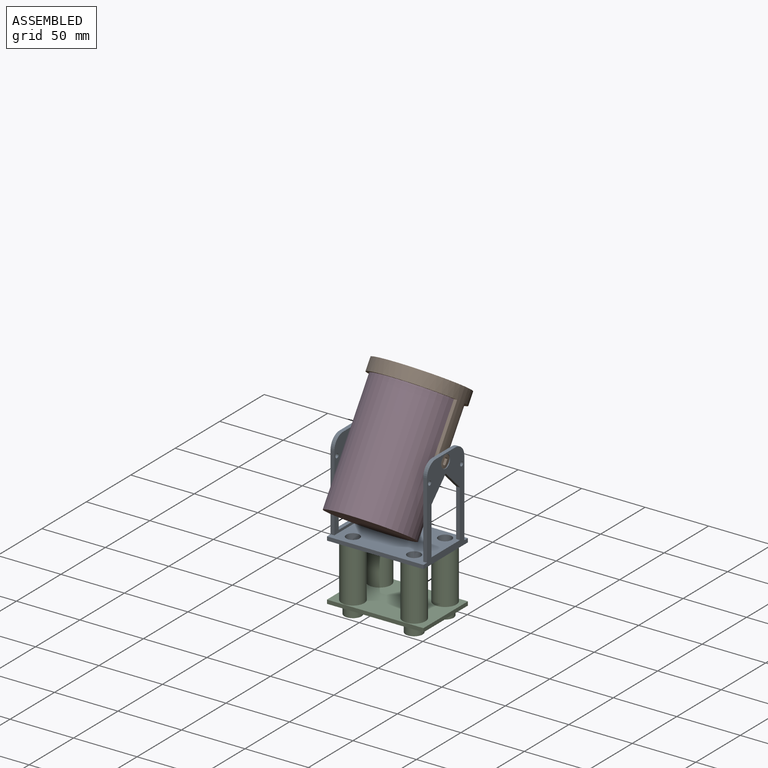
[diagram: assembled view]
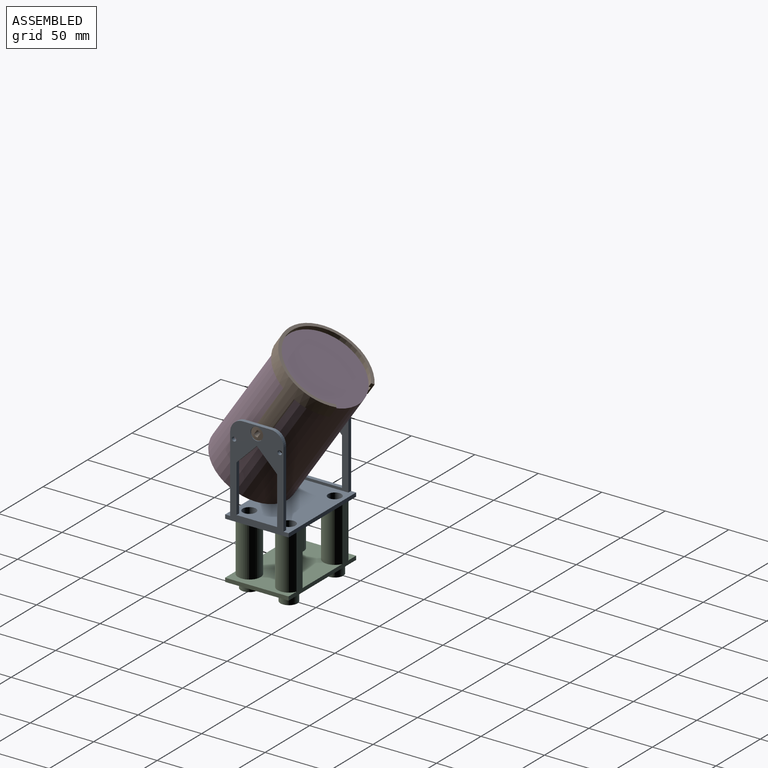
[diagram: assembled view, second angle]
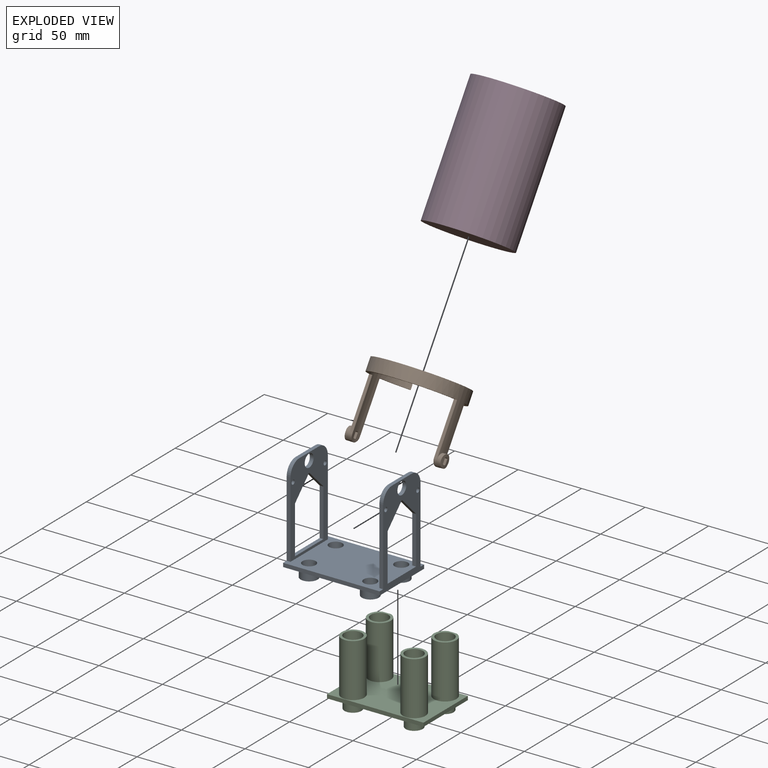
[diagram: exploded view]
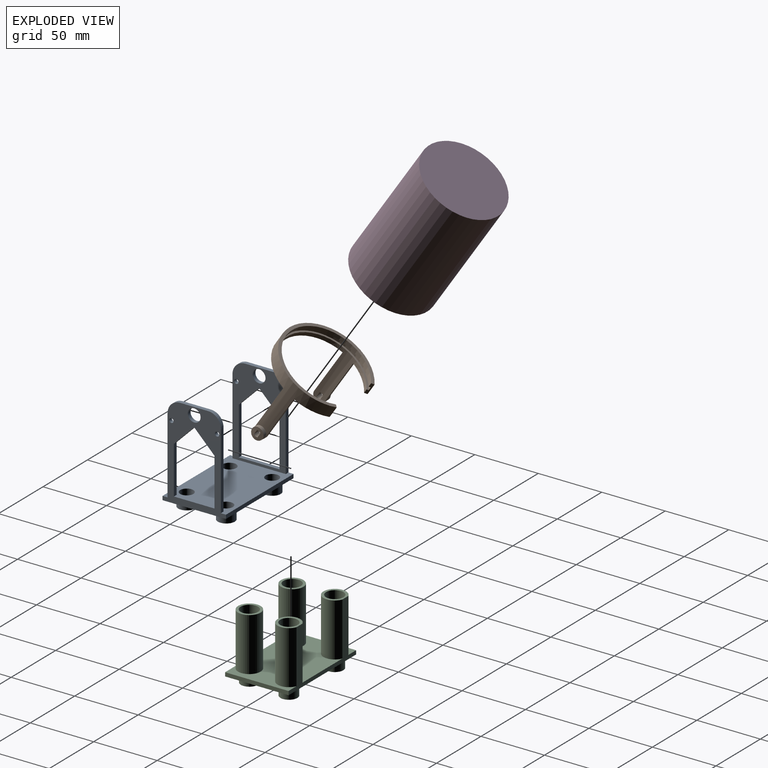
[diagram: exploded view, second angle]
ASSEMBLY  parts=4 mates=3
PART A: 46 faces, bbox 76x50x80 mm
  f0: plane 73x50mm, normal (1,0,0), area 1494.4mm2, adj f4,f5,f6,f11,f23,f24,f25,f26
  f1: plane 73x50mm, normal (-1,0,0), area 1494.4mm2, adj f4,f5,f6,f11,f20,f21,f22,f34
  f2: plane 70x42mm, normal (1,0,0), area 1344.4mm2, adj f4,f20,f21,f22,f34,f35,f36,f37
  f3: plane 70x42mm, normal (-1,0,0), area 1344.4mm2, adj f4,f23,f24,f25,f26,f27,f28,f29
  f4: plane 76x50mm, normal (0,0,1), area 3208.2mm2, adj f0,f1,f2,f3,f5,f6,f7,f8
  f5: plane 76x3mm, normal (0,-1,0), area 228mm2, adj f0,f1,f4,f11
  f6: plane 76x3mm, normal (0,1,0), area 228mm2, adj f0,f1,f4,f11
  f7: cylinder r=5.2mm len=10.4mm, axis (0,0,-1), area 326.7mm2, adj f4,f17
  f8: cylinder r=5.2mm len=10.4mm, axis (0,0,-1), area 326.7mm2, adj f4,f15
  f9: cylinder r=5.2mm len=10.4mm, axis (0,0,-1), area 326.7mm2, adj f4,f13
  f10: cylinder r=5.2mm len=10.4mm, axis (0,0,-1), area 326.7mm2, adj f4,f19
  f11: plane 76x50mm, normal (0,0,-1), area 3235.9mm2, adj f0,f1,f5,f6,f12,f14,f16,f18
  f12: cylinder r=6.7mm len=13.4mm, axis (0,0,1), area 294.7mm2, adj f11,f13
  f13: plane 13.4x13.4mm, normal (0,0,-1), area 56.1mm2, adj f9,f12
  f14: cylinder r=6.7mm len=13.4mm, axis (0,0,1), area 294.7mm2, adj f11,f15
  f15: plane 13.4x13.4mm, normal (0,0,-1), area 56.1mm2, adj f8,f14
  f16: cylinder r=6.7mm len=13.4mm, axis (0,0,1), area 294.7mm2, adj f11,f17
  f17: plane 13.4x13.4mm, normal (0,0,-1), area 56.1mm2, adj f7,f16
  f18: cylinder r=6.7mm len=13.4mm, axis (0,0,1), area 294.7mm2, adj f11,f19
  f19: plane 13.4x13.4mm, normal (0,0,-1), area 56.1mm2, adj f10,f18
  f20: plane 60x3mm, normal (0,1,0), area 180mm2, adj f1,f2,f4,f45
  f21: plane 60x3mm, normal (0,-1,0), area 180mm2, adj f1,f2,f4,f44
  f22: plane 22x3mm, normal (0,0,1), area 66mm2, adj f1,f2,f44,f45
  f23: plane 60x3mm, normal (0,1,0), area 180mm2, adj f0,f3,f4,f42
  f24: plane 60x3mm, normal (0,-1,0), area 180mm2, adj f0,f3,f4,f43
  f25: plane 22x3mm, normal (0,0,1), area 66mm2, adj f0,f3,f42,f43
  f26: cylinder r=1.7mm len=3.4mm, axis (-1,0,0), area 32mm2, adj f0,f3
  f27: cylinder r=1.7mm len=3.4mm, axis (-1,0,0), area 32mm2, adj f0,f3
  f28: plane 16x16mm, normal (0,0.71,-0.71), area 67.9mm2, adj f0,f3,f29,f32
  f29: plane 37.5x3mm, normal (0,1,0), area 112.5mm2, adj f0,f3,f28,f30
  f30: plane 32x3mm, normal (0,0,1), area 96mm2, adj f0,f3,f29,f31
  f31: plane 37.5x3mm, normal (0,-1,0), area 112.5mm2, adj f0,f3,f30,f32
  f32: plane 16x16mm, normal (0,-0.71,-0.71), area 67.9mm2, adj f0,f3,f28,f31
  f33: cylinder r=5mm len=10mm, axis (-1,0,0), area 94.2mm2, adj f0,f3
  f34: cylinder r=1.7mm len=3.4mm, axis (-1,0,0), area 32mm2, adj f1,f2
  f35: cylinder r=1.7mm len=3.4mm, axis (-1,0,0), area 32mm2, adj f1,f2
  f36: plane 16x16mm, normal (0,-0.71,-0.71), area 67.9mm2, adj f1,f2,f37,f40
  f37: plane 37.5x3mm, normal (0,-1,0), area 112.5mm2, adj f1,f2,f36,f38
  f38: plane 32x3mm, normal (0,0,1), area 96mm2, adj f1,f2,f37,f39
  f39: plane 37.5x3mm, normal (0,1,0), area 112.5mm2, adj f1,f2,f38,f40
  f40: plane 16x16mm, normal (0,0.71,-0.71), area 67.9mm2, adj f1,f2,f36,f39
  f41: cylinder r=5mm len=10mm, axis (-1,0,0), area 94.2mm2, adj f1,f2
  f42: cylinder r=10mm len=10mm, axis (1,0,0), area 47.1mm2, adj f0,f3,f23,f25
  f43: cylinder r=10mm len=10mm, axis (-1,0,0), area 47.1mm2, adj f0,f3,f24,f25
  f44: cylinder r=10mm len=10mm, axis (-1,0,0), area 47.1mm2, adj f1,f2,f21,f22
  f45: cylinder r=10mm len=10mm, axis (1,0,0), area 47.1mm2, adj f1,f2,f20,f22
PART B: 30 faces, bbox 62.8x76x55 mm
  f0: plane 22.77x14.86mm, normal (0,0,-1), area 64.8mm2, adj f2,f4,f5,f21
  f1: plane 22.77x14.86mm, normal (0,0,-1), area 64.8mm2, adj f2,f3,f4,f13
  f2: cylinder r=32.5mm len=65mm, axis (0,0,-1), area 1416.7mm2, adj f0,f1,f3,f5,f8,f11,f12,f13
  f3: plane 10x1.98mm, normal (-0.61,0.79,0), area 20.5mm2, adj f1,f2,f4,f6,f7,f9,f10,f11
  f4: cylinder r=35mm len=70mm, axis (0,0,-1), area 2470.9mm2, adj f0,f1,f3,f5,f7,f8,f13,f17
  f5: plane 10x1.98mm, normal (-0.61,-0.79,0), area 20.5mm2, adj f0,f2,f4,f6,f7,f9,f10,f11
  f6: cylinder r=32.5mm len=65mm, axis (0,0,-1), area 565.8mm2, adj f3,f5,f7,f10
  f7: plane 70x62.77mm, normal (0,0,1), area 419.7mm2, adj f3,f4,f5,f6
  f8: plane 69.28x30mm, normal (0,0,-1), area 240mm2, adj f2,f4,f17,f25
  f9: cylinder r=34mm len=68mm, axis (0,0,-1), area 507.4mm2, adj f3,f5,f10,f11
  f10: plane 68x60.97mm, normal (0,0,-1), area 248.1mm2, adj f3,f5,f6,f9
  f11: plane 68x60.97mm, normal (0,0,1), area 248.1mm2, adj f2,f3,f5,f9
  f12: cylinder r=2.6mm len=5.54mm, axis (0,1,0), area 19mm2, adj f2,f14,f15,f19
  f13: plane 40x2.53mm, normal (-1,0,0), area 101.1mm2, adj f1,f2,f4,f29
  f14: plane 5.5x4.1mm, normal (-1,0,0), area 22.6mm2, adj f2,f12,f16,f19
  f15: plane 5.5x4.1mm, normal (1,0,0), area 22.6mm2, adj f2,f12,f16,f19
  f16: cylinder r=2.6mm len=5.54mm, axis (0,1,0), area 19mm2, adj f2,f14,f15,f19
  f17: plane 40x2.53mm, normal (1,0,0), area 101.1mm2, adj f2,f4,f8,f29
  f18: cylinder r=4.9mm len=9.8mm, axis (0,1,0), area 92.3mm2, adj f4,f19
  f19: cylinder r=35mm len=9.8mm, axis (0,0,-1), area 60.1mm2, adj f12,f14,f15,f16,f18
  f20: cylinder r=2.6mm len=5.54mm, axis (0,-1,0), area 19mm2, adj f2,f22,f23,f27
  f21: plane 40x2.53mm, normal (-1,0,0), area 101.1mm2, adj f0,f2,f4,f28
  f22: plane 5.5x4.1mm, normal (-1,0,0), area 22.6mm2, adj f2,f20,f24,f27
  f23: plane 5.5x4.1mm, normal (1,0,0), area 22.6mm2, adj f2,f20,f24,f27
  f24: cylinder r=2.6mm len=5.54mm, axis (0,-1,0), area 19mm2, adj f2,f22,f23,f27
  f25: plane 40x2.53mm, normal (1,0,0), area 101.1mm2, adj f2,f4,f8,f28
  f26: cylinder r=4.9mm len=9.8mm, axis (0,-1,0), area 92.4mm2, adj f4,f27
  f27: cylinder r=35mm len=9.8mm, axis (0,0,-1), area 60.1mm2, adj f20,f22,f23,f24,f26
  f28: cylinder r=5mm len=10mm, axis (0,-1,0), area 39.5mm2, adj f2,f4,f21,f25
  f29: cylinder r=5mm len=10mm, axis (0,-1,0), area 39.5mm2, adj f2,f4,f13,f17
PART C: 34 faces, bbox 76x50x52 mm
  f0: plane 13.8x13.8mm, normal (0,0,1), area 64.6mm2, adj f7,f31
  f1: plane 13.8x13.8mm, normal (0,0,1), area 64.6mm2, adj f11,f28
  f2: plane 13.8x13.8mm, normal (0,0,1), area 64.6mm2, adj f8,f26
  f3: plane 13.8x13.8mm, normal (0,0,1), area 64.6mm2, adj f9,f23
  f4: plane 50x3mm, normal (1,0,0), area 150mm2, adj f5,f10,f12,f13
  f5: plane 76x45mm, normal (0,1,0), area 780mm2, adj f4,f6,f12,f13,f22,f24,f25,f27
  f6: plane 50x3mm, normal (-1,0,0), area 150mm2, adj f5,f10,f12,f13
  f7: cylinder r=5.2mm len=10.4mm, axis (0,0,-1), area 326.7mm2, adj f0,f19
  f8: cylinder r=5.2mm len=10.4mm, axis (0,0,-1), area 326.7mm2, adj f2,f17
  f9: cylinder r=5.2mm len=10.4mm, axis (0,0,-1), area 326.7mm2, adj f3,f15
  f10: plane 76x3mm, normal (0,-1,0), area 228mm2, adj f4,f6,f12,f13
  f11: cylinder r=5.2mm len=10.4mm, axis (0,0,-1), area 326.7mm2, adj f1,f21
  f12: plane 76x50mm, normal (0,0,1), area 2810.2mm2, adj f4,f5,f6,f10,f22,f25,f29,f32
  f13: plane 76x50mm, normal (0,0,-1), area 3235.9mm2, adj f4,f5,f6,f10,f14,f16,f18,f20
  f14: cylinder r=6.7mm len=13.4mm, axis (0,0,1), area 294.7mm2, adj f13,f15
  f15: plane 13.4x13.4mm, normal (0,0,-1), area 56.1mm2, adj f9,f14
  f16: cylinder r=6.7mm len=13.4mm, axis (0,0,1), area 294.7mm2, adj f13,f17
  f17: plane 13.4x13.4mm, normal (0,0,-1), area 56.1mm2, adj f8,f16
  f18: cylinder r=6.7mm len=13.4mm, axis (0,0,1), area 294.7mm2, adj f13,f19
  f19: plane 13.4x13.4mm, normal (0,0,-1), area 56.1mm2, adj f7,f18
  f20: cylinder r=6.7mm len=13.4mm, axis (0,0,1), area 294.7mm2, adj f13,f21
  f21: plane 13.4x13.4mm, normal (0,0,-1), area 56.1mm2, adj f11,f20
  f22: cylinder r=8.9mm len=42mm, axis (0,0,-1), area 2065.9mm2, adj f5,f12,f24
  f23: cylinder r=6.9mm len=42mm, axis (0,0,-1), area 1820.9mm2, adj f3,f24
  f24: plane 17.8x17.17mm, normal (0,0,1), area 96.5mm2, adj f5,f22,f23
  f25: cylinder r=8.9mm len=42mm, axis (0,0,-1), area 2065.9mm2, adj f5,f12,f27
  f26: cylinder r=6.9mm len=42mm, axis (0,0,-1), area 1820.9mm2, adj f2,f27
  f27: plane 17.8x17.17mm, normal (0,0,1), area 96.5mm2, adj f5,f25,f26
  f28: cylinder r=6.9mm len=42mm, axis (0,0,-1), area 1820.9mm2, adj f1,f30
  f29: cylinder r=8.9mm len=42mm, axis (0,0,-1), area 2348.7mm2, adj f12,f30
  f30: plane 17.8x17.8mm, normal (0,0,1), area 99.3mm2, adj f28,f29
  f31: cylinder r=6.9mm len=42mm, axis (0,0,-1), area 1820.9mm2, adj f0,f33
  f32: cylinder r=8.9mm len=42mm, axis (0,0,-1), area 2348.7mm2, adj f12,f33
  f33: plane 17.8x17.8mm, normal (0,0,1), area 99.3mm2, adj f31,f32
PART D: 3 faces, bbox 65x65x100 mm
  f0: cylinder r=32.5mm len=100mm, axis (0,0,-1), area 20420.4mm2, adj f1,f2
  f1: plane 65x65mm, normal (0,0,1), area 3318.3mm2, adj f0
  f2: plane 65x65mm, normal (0,0,-1), area 3318.3mm2, adj f0
PLACE A t=(-116.96,0.1,0)mm
PLACE B rot(axis=(-0.28,-0.28,-0.92),94.9deg) t=(-0.37,25.23,104.33)mm
PLACE C t=(-216.41,0.1,-45)mm
PLACE D rot(axis=(-1,0,0),34deg) t=(-50.5,-82.73,58.27)mm
MATE revolute A.f33 <-> B.f18  axis (-1,0,0) through (-35,0.1,67)mm
MATE fastened D.f0 <-> B.f2  axis (0,0.56,0.83) through (-0.37,26.07,105.57)mm
MATE fastened C.f11 <-> A.f10  axis (0,0,-1) through (-24.1,-15.53,0)mm
